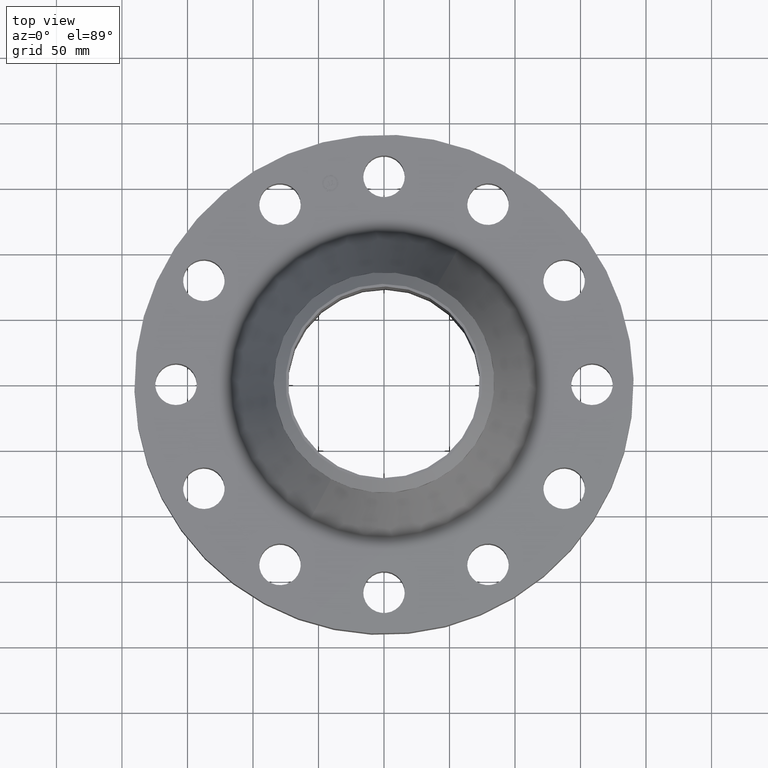
[diagram: clean part render]
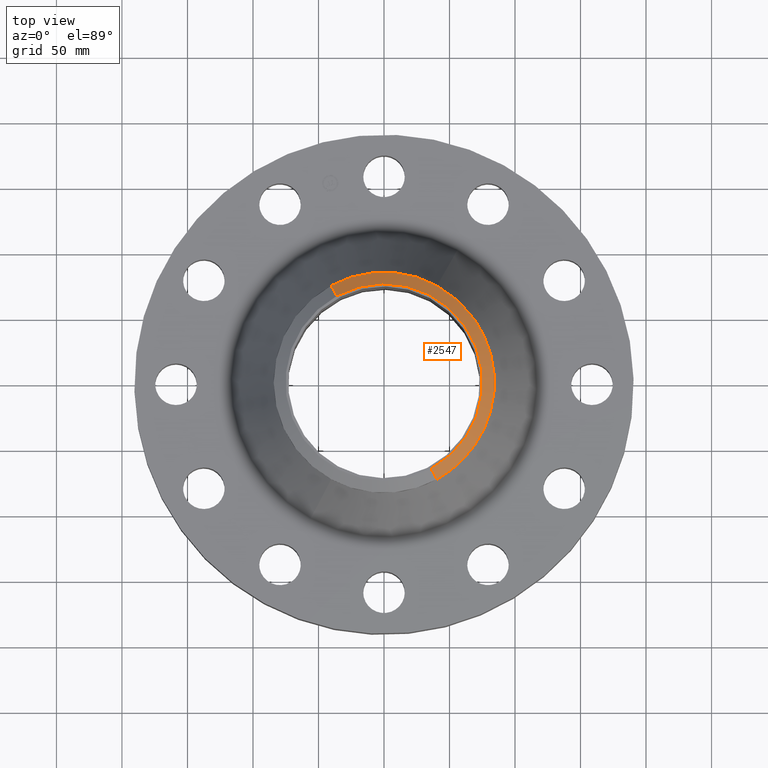
[diagram: same view with one face highlighted and labeled with its STEP entity id]
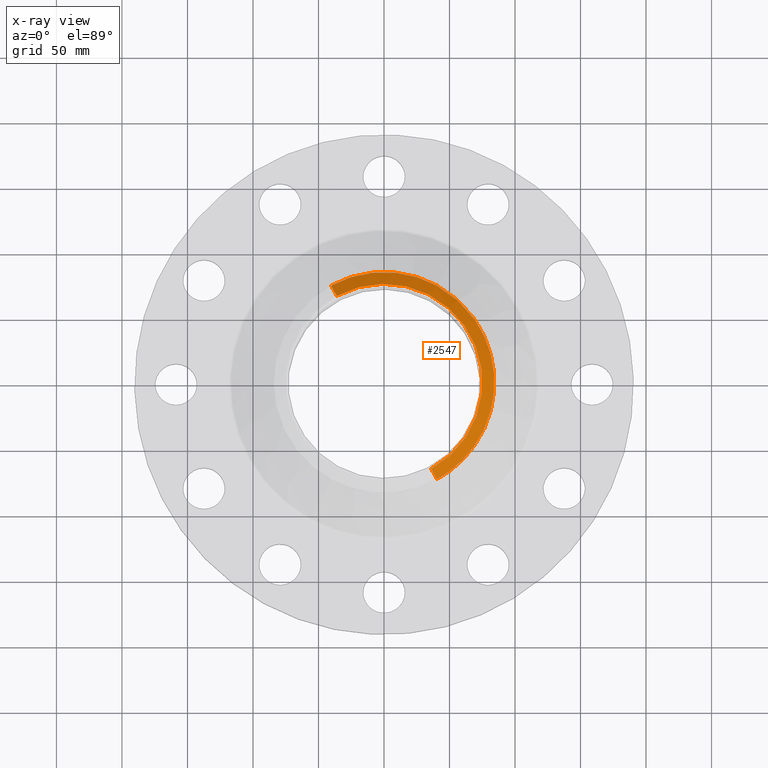
[diagram: x-ray of the same camera — body ghosted, the highlighted face saturated]
A machine part, top view. The second image highlights one B-rep face of the part: STEP entity #2547.
The next image is the same camera in x-ray: the body ghosted, the highlighted face saturated — about 0% of this face is hidden behind the body in this view.
In plain terms, the highlighted conical surface has half-angle 52.5 deg.
Its self-contained STEP definition (entity closure, byte-faithful):
#1809=AXIS2_PLACEMENT_3D('Circle Axis2P3D',#1807,#1808,$) ;
#2533=AXIS2_PLACEMENT_3D('Cone Axis2P3D',#2530,#2531,#2532) ;
#2537=AXIS2_PLACEMENT_3D('Circle Axis2P3D',#2535,#2536,$) ;
#1790=CARTESIAN_POINT('Vertex',(1.58929566048,2.90918619267,5.22701587164)) ;
#1804=CARTESIAN_POINT('Vertex',(-1.58929566048,2.90918619268,5.22701587164)) ;
#1807=CARTESIAN_POINT('Axis2P3D Location',(0.,0.,5.22701587164)) ;
#1833=CARTESIAN_POINT('Control Point',(1.58929566048,2.90918619267,5.22701587162)) ;
#1834=CARTESIAN_POINT('Control Point',(1.90081024939,2.73900499713,5.22701587162)) ;
#1835=CARTESIAN_POINT('Control Point',(2.18954616341,2.5271277169,5.22701587162)) ;
#1836=CARTESIAN_POINT('Control Point',(2.44805487116,2.2776115224,5.22701587162)) ;
#1837=CARTESIAN_POINT('Control Point',(2.89198114421,1.7154984521,5.22701587162)) ;
#1838=CARTESIAN_POINT('Control Point',(3.17245217996,1.05642513462,5.22701587163)) ;
#1839=CARTESIAN_POINT('Control Point',(3.26748756471,0.709937964666,5.22701587163)) ;
#1840=CARTESIAN_POINT('Control Point',(3.36251243531,-7.65483347693E-013,5.22701587163)) ;
#1841=CARTESIAN_POINT('Control Point',(3.26748756471,-0.709937964668,5.22701587163)) ;
#1842=CARTESIAN_POINT('Control Point',(3.17245217996,-1.05642513462,5.22701587163)) ;
#1843=CARTESIAN_POINT('Control Point',(2.89198114421,-1.7154984521,5.22701587163)) ;
#1844=CARTESIAN_POINT('Control Point',(2.44805487116,-2.2776115224,5.22701587164)) ;
#1845=CARTESIAN_POINT('Control Point',(2.18954616341,-2.5271277169,5.22701587164)) ;
#1846=CARTESIAN_POINT('Control Point',(1.90081024939,-2.73900499713,5.22701587164)) ;
#1847=CARTESIAN_POINT('Control Point',(1.58929566048,-2.90918619268,5.22701587164)) ;
#1848=CARTESIAN_POINT('Vertex',(1.58929566048,-2.90918619267,5.22701587162)) ;
#2496=CARTESIAN_POINT('Line Origine',(1.50401548342,-2.75308187566,5.36350793582)) ;
#2500=CARTESIAN_POINT('Vertex',(1.41873530636,-2.59697755866,5.50000000002)) ;
#2507=CARTESIAN_POINT('Vertex',(-1.41873530636,2.59697755866,5.50000000002)) ;
#2510=CARTESIAN_POINT('Line Origine',(-1.50401548342,2.75308187566,5.36350793582)) ;
#2530=CARTESIAN_POINT('Axis2P3D Location',(0.,0.,5.50000000002)) ;
#2535=CARTESIAN_POINT('Axis2P3D Location',(0.,0.,5.50000000002)) ;
#1808=DIRECTION('Axis2P3D Direction',(-0.,0.,-0.0393700787402)) ;
#2497=DIRECTION('Vector Direction',(0.014974561121,-0.02741075027,-0.023966985394)) ;
#2511=DIRECTION('Vector Direction',(-0.014974561121,0.02741075027,-0.023966985394)) ;
#2531=DIRECTION('Axis2P3D Direction',(-0.,-0.,-0.0393700787402)) ;
#2532=DIRECTION('Axis2P3D XDirection',(-0.0188750212049,0.0345504945626,0.)) ;
#2536=DIRECTION('Axis2P3D Direction',(-0.,0.,-0.0393700787402)) ;
#2498=VECTOR('Line Direction',#2497,0.0393700787402) ;
#2512=VECTOR('Line Direction',#2511,0.0393700787402) ;
#2541=ORIENTED_EDGE('',*,*,#2514,.F.) ;
#2542=ORIENTED_EDGE('',*,*,#2539,.F.) ;
#2543=ORIENTED_EDGE('',*,*,#2502,.T.) ;
#2544=ORIENTED_EDGE('',*,*,#1850,.T.) ;
#2545=ORIENTED_EDGE('',*,*,#1811,.F.) ;
#2547=ADVANCED_FACE('PartBody',(#2546),#2534,.T.) ;
#1832=B_SPLINE_CURVE_WITH_KNOTS('',5,(#1833,#1834,#1835,#1836,#1837,#1838,#1839,#1840,#1841,#1842,#1843,#1844,#1845,#1846,#1847),.UNSPECIFIED.,.F.,.U.,(6,3,3,3,6),(-90.1621215127,-45.0810607564,0.,45.0810607564,90.1621215127),.UNSPECIFIED.) ;
#1810=CIRCLE('generated circle',#1809,3.31500000001) ;
#2538=CIRCLE('generated circle',#2537,2.95924015749) ;
#2534=CONICAL_SURFACE('Cone',#2533,2.95924015749,0.916297857297) ;
#1811=EDGE_CURVE('',#1805,#1791,#1810,.T.) ;
#1850=EDGE_CURVE('',#1849,#1791,#1832,.F.) ;
#2502=EDGE_CURVE('',#2501,#1849,#2499,.T.) ;
#2514=EDGE_CURVE('',#2508,#1805,#2513,.T.) ;
#2539=EDGE_CURVE('',#2501,#2508,#2538,.F.) ;
#2540=EDGE_LOOP('',(#2541,#2542,#2543,#2544,#2545)) ;
#2546=FACE_OUTER_BOUND('',#2540,.T.) ;
#2499=LINE('Line',#2496,#2498) ;
#2513=LINE('Line',#2510,#2512) ;
#1791=VERTEX_POINT('',#1790) ;
#1805=VERTEX_POINT('',#1804) ;
#1849=VERTEX_POINT('',#1848) ;
#2501=VERTEX_POINT('',#2500) ;
#2508=VERTEX_POINT('',#2507) ;